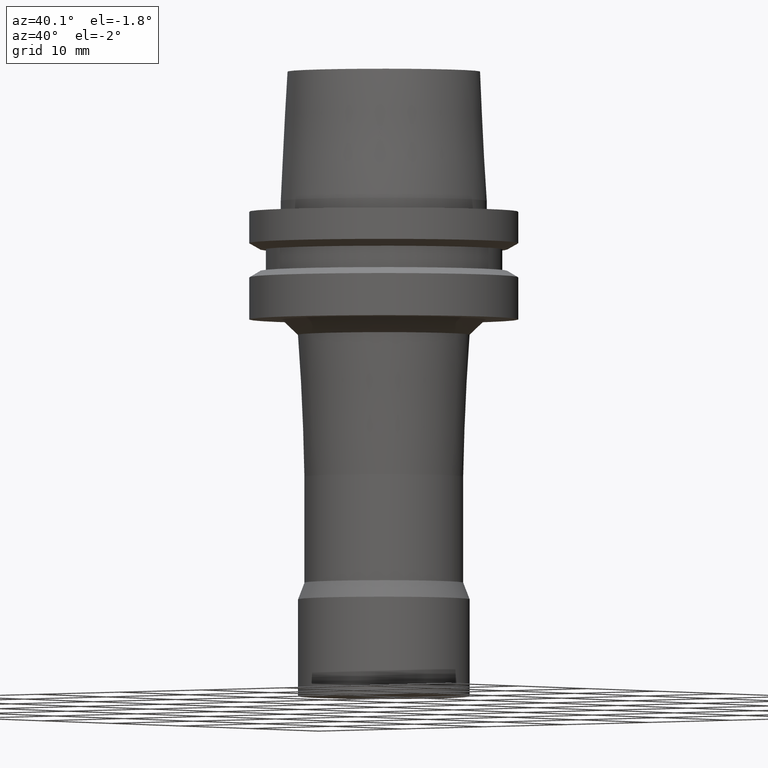
[diagram: clean part render]
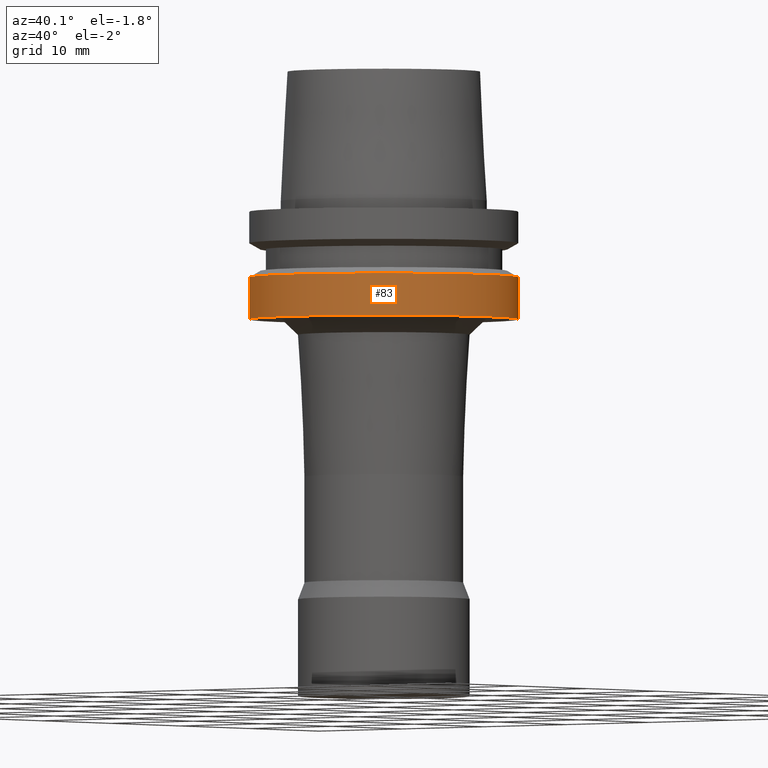
[diagram: same view with one face highlighted and labeled with its STEP entity id]
A machine part, auxiliary view. The second image highlights one B-rep face of the part: STEP entity #83.
In plain terms, the highlighted cylindrical surface (bore or boss wall) has radius 12.5 mm, axis along (-0, -0, 1).
Its self-contained STEP definition (entity closure, byte-faithful):
#83=ADVANCED_FACE('',(#118,#119),#120,.T.);
#118=FACE_BOUND('',#170,.T.);
#119=FACE_BOUND('',#171,.T.);
#120=CYLINDRICAL_SURFACE('',#172,12.5);
#170=EDGE_LOOP('',(#238));
#171=EDGE_LOOP('',(#239));
#172=AXIS2_PLACEMENT_3D('',#240,#241,#242);
#238=ORIENTED_EDGE('',*,*,#295,.F.);
#239=ORIENTED_EDGE('',*,*,#294,.T.);
#240=CARTESIAN_POINT('',(4.92544163124162E-016,9.85088326248324E-016,-8.04385662));
#241=DIRECTION('',(-6.12323399573677E-017,-1.22464679914735E-016,1.0));
#242=DIRECTION('',(-1.23259516440783E-032,1.0,1.22464679914735E-016));
#294=EDGE_CURVE('',#319,#319,#320,.T.);
#295=EDGE_CURVE('',#321,#321,#322,.T.);
#319=VERTEX_POINT('',#353);
#320=CIRCLE('',#354,12.5);
#321=VERTEX_POINT('',#355);
#322=CIRCLE('',#356,12.5);
#353=CARTESIAN_POINT('',(3.72764926674648E-016,12.5,-6.08771324));
#354=AXIS2_PLACEMENT_3D('',#395,#396,#397);
#355=CARTESIAN_POINT('',(6.12323399573676E-016,12.5,-10.0));
#356=AXIS2_PLACEMENT_3D('',#398,#399,#400);
#395=CARTESIAN_POINT('',(3.72764926674648E-016,7.45529853349296E-016,-6.08771324));
#396=DIRECTION('',(6.12323399573677E-017,1.22464679914735E-016,-1.0));
#397=DIRECTION('',(-1.23259516440783E-032,1.0,1.22464679914735E-016));
#398=CARTESIAN_POINT('',(6.12323399573677E-016,1.22464679914735E-015,-10.0));
#399=DIRECTION('',(6.12323399573677E-017,1.22464679914735E-016,-1.0));
#400=DIRECTION('',(-1.23259516440783E-032,1.0,1.22464679914735E-016));